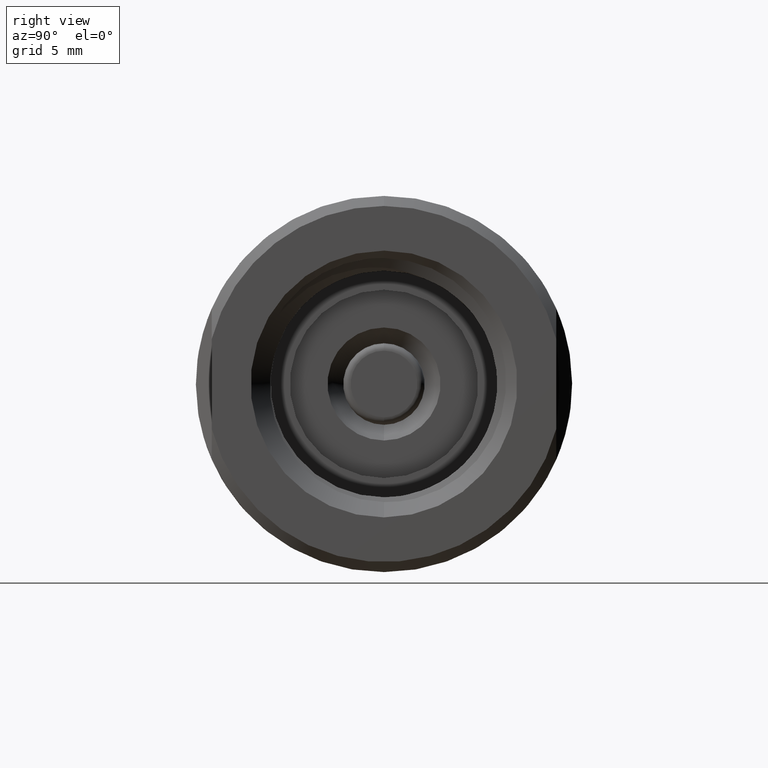
[diagram: clean part render]
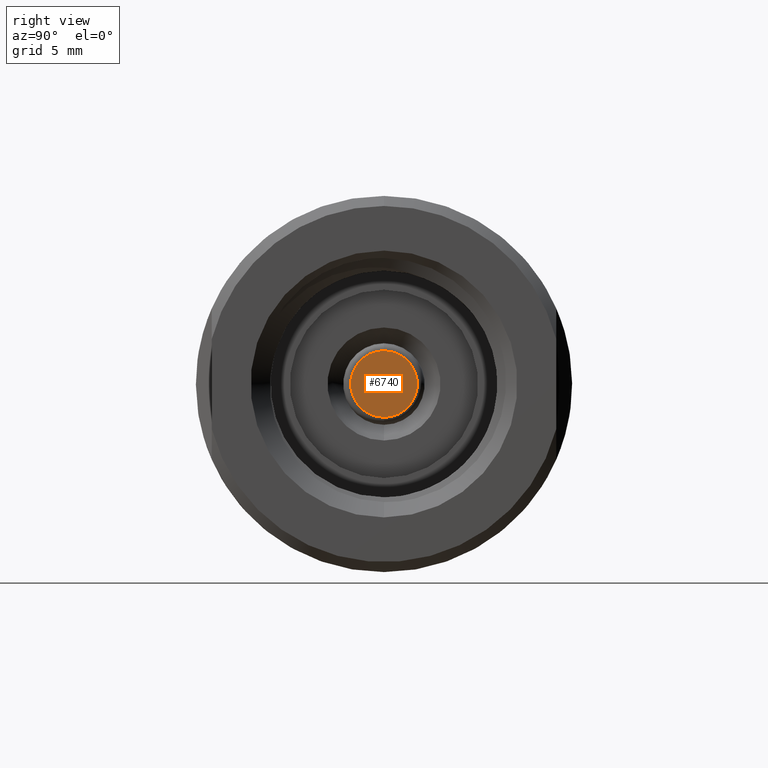
[diagram: same view with one face highlighted and labeled with its STEP entity id]
A machine part, right view. The second image highlights one B-rep face of the part: STEP entity #6740.
In plain terms, the highlighted planar face has unit normal (-1, 0, -0).
Its self-contained STEP definition (entity closure, byte-faithful):
#151 = DIRECTION ( 'NONE',  ( 0.0000000000000000000, 0.0000000000000000000, 1.000000000000000000 ) ) ;
#252 = CIRCLE ( 'NONE', #6799, 0.06628679656440360224 ) ;
#788 = DIRECTION ( 'NONE',  ( -1.000000000000000000, 0.0000000000000000000, -0.0000000000000000000 ) ) ;
#912 = VERTEX_POINT ( 'NONE', #11132 ) ;
#1032 = CARTESIAN_POINT ( 'NONE',  ( 0.2087500000000000189, 0.0000000000000000000, 0.0000000000000000000 ) ) ;
#1089 = DIRECTION ( 'NONE',  ( -1.000000000000000000, -0.0000000000000000000, -0.0000000000000000000 ) ) ;
#1171 = ORIENTED_EDGE ( 'NONE', *, *, #4246, .F. ) ;
#1807 = VERTEX_POINT ( 'NONE', #4071 ) ;
#2130 = AXIS2_PLACEMENT_3D ( 'NONE', #5306, #3669, #10750 ) ;
#3669 = DIRECTION ( 'NONE',  ( -1.000000000000000000, -0.0000000000000000000, -0.0000000000000000000 ) ) ;
#3809 = AXIS2_PLACEMENT_3D ( 'NONE', #7810, #788, #11386 ) ;
#4071 = CARTESIAN_POINT ( 'NONE',  ( 0.2087500000000000189, 0.0000000000000000000, 0.06628679656440360224 ) ) ;
#4242 = FACE_OUTER_BOUND ( 'NONE', #6425, .T. ) ;
#4246 = EDGE_CURVE ( 'NONE', #912, #1807, #7929, .T. ) ;
#4284 = EDGE_CURVE ( 'NONE', #1807, #912, #252, .T. ) ;
#5306 = CARTESIAN_POINT ( 'NONE',  ( 0.2087500000000000189, 0.0000000000000000000, 0.0000000000000000000 ) ) ;
#6425 = EDGE_LOOP ( 'NONE', ( #8267, #1171 ) ) ;
#6740 = ADVANCED_FACE ( 'NONE', ( #4242 ), #9741, .F. ) ;
#6799 = AXIS2_PLACEMENT_3D ( 'NONE', #1032, #1089, #151 ) ;
#7810 = CARTESIAN_POINT ( 'NONE',  ( 0.2087499999999999911, 0.06628679656440360224, 0.0000000000000000000 ) ) ;
#7929 = CIRCLE ( 'NONE', #2130, 0.06628679656440360224 ) ;
#8267 = ORIENTED_EDGE ( 'NONE', *, *, #4284, .F. ) ;
#9741 = PLANE ( 'NONE',  #3809 ) ;
#10750 = DIRECTION ( 'NONE',  ( 0.0000000000000000000, 0.0000000000000000000, 1.000000000000000000 ) ) ;
#11132 = CARTESIAN_POINT ( 'NONE',  ( 0.2087500000000000189, 8.117791323832864896E-18, -0.06628679656440360224 ) ) ;
#11386 = DIRECTION ( 'NONE',  ( -0.0000000000000000000, 0.0000000000000000000, 1.000000000000000000 ) ) ;